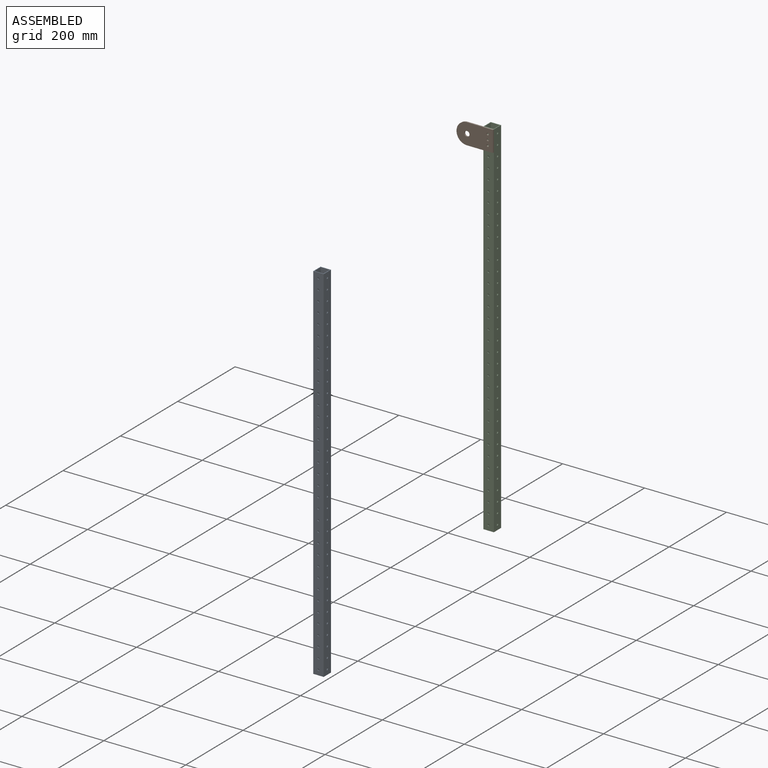
[diagram: assembled view]
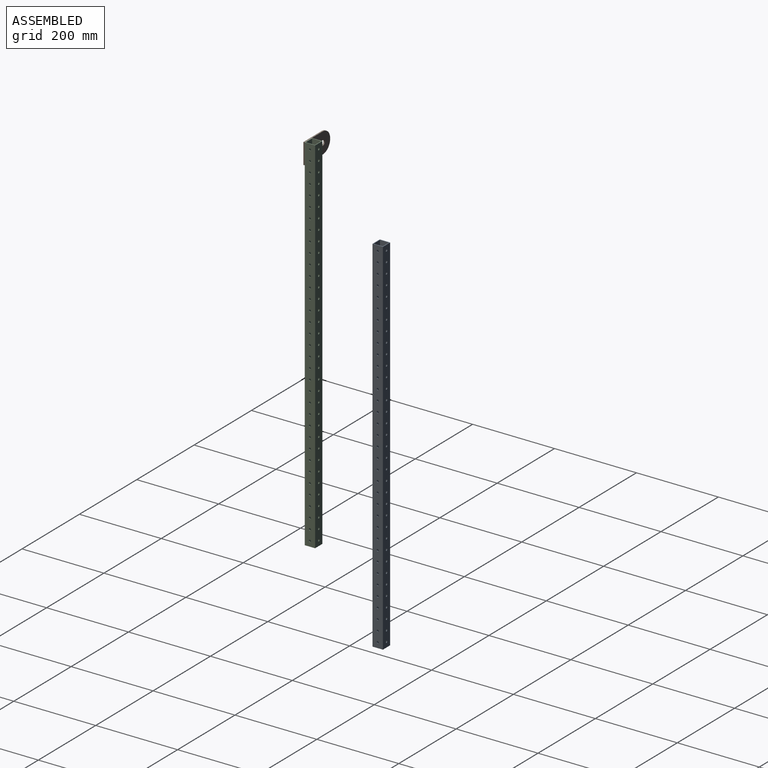
[diagram: assembled view, second angle]
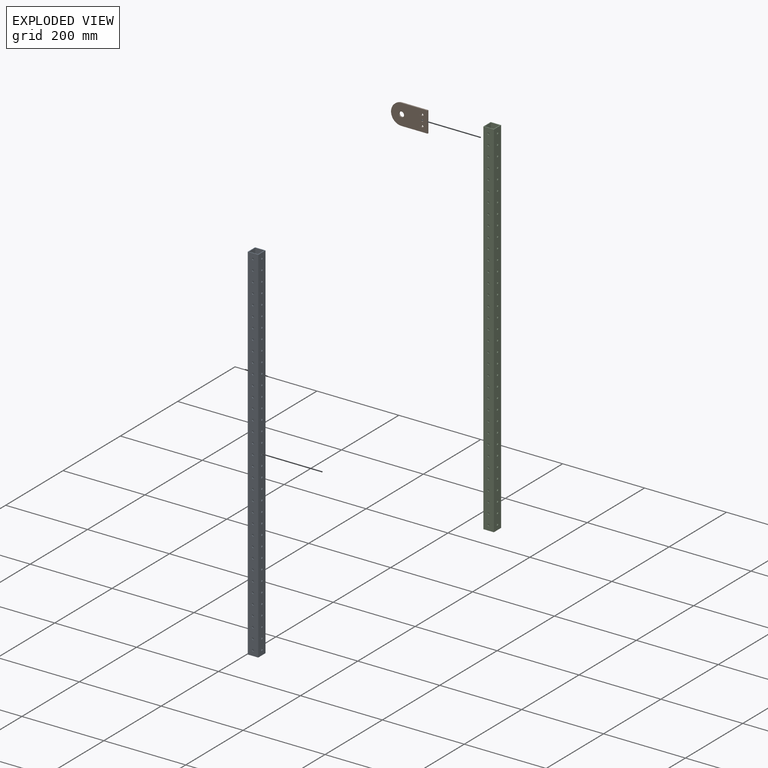
[diagram: exploded view]
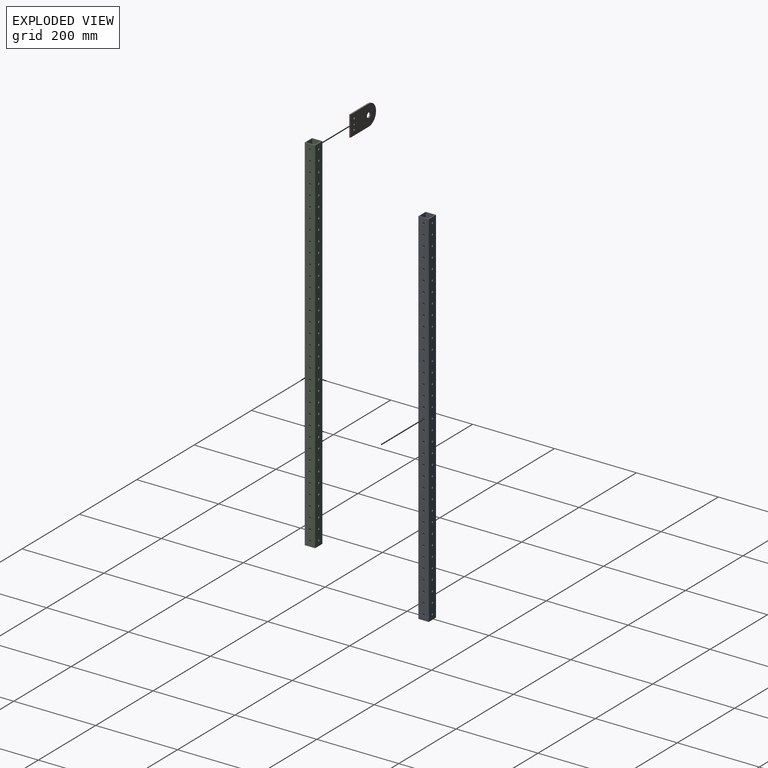
[diagram: exploded view, second angle]
ASSEMBLY  parts=3 mates=3
PART A: 150 faces, bbox 25.4x25.4x889 mm
  f0: plane 889x25.4mm, normal (1,0,0), area 21864.1mm2, adj f1,f3,f4,f5,f81,f83,f85,f87
  f1: plane 889x25.4mm, normal (0,1,0), area 21864.1mm2, adj f0,f2,f4,f5,f11,f13,f15,f17
  f2: plane 889x25.4mm, normal (-1,0,0), area 21864.1mm2, adj f1,f3,f4,f5,f80,f82,f84,f86
  f3: plane 889x25.4mm, normal (0,-1,0), area 21864.1mm2, adj f0,f2,f4,f5,f10,f12,f14,f16
  f4: plane 25.4x25.4mm, normal (0,0,1), area 151.2mm2, adj f0,f1,f2,f3,f6,f7,f8,f9
  f5: plane 25.4x25.4mm, normal (0,0,-1), area 151.2mm2, adj f0,f1,f2,f3,f6,f7,f8,f9
  f6: plane 889x22.23mm, normal (-1,0,0), area 19041.5mm2, adj f4,f5,f7,f9,f81,f83,f85,f87
  f7: plane 889x22.23mm, normal (0,-1,0), area 19041.5mm2, adj f4,f5,f6,f8,f11,f13,f15,f17
  f8: plane 889x22.23mm, normal (1,0,0), area 19041.5mm2, adj f4,f5,f7,f9,f80,f82,f84,f86
  f9: plane 889x22.23mm, normal (0,1,0), area 19041.5mm2, adj f4,f5,f6,f8,f10,f12,f14,f16
  f10: cylinder r=2.55mm len=5.11mm, axis (0,1,0), area 25.5mm2, adj f3,f9
  f11: cylinder r=2.55mm len=5.11mm, axis (0,1,0), area 25.5mm2, adj f1,f7
  f12: cylinder r=2.55mm len=5.11mm, axis (0,1,0), area 25.5mm2, adj f3,f9
  f13: cylinder r=2.55mm len=5.11mm, axis (0,1,0), area 25.5mm2, adj f1,f7
  f14: cylinder r=2.55mm len=5.11mm, axis (0,1,0), area 25.5mm2, adj f3,f9
  f15: cylinder r=2.55mm len=5.11mm, axis (0,1,0), area 25.5mm2, adj f1,f7
  f16: cylinder r=2.55mm len=5.11mm, axis (0,1,0), area 25.5mm2, adj f3,f9
  f17: cylinder r=2.55mm len=5.11mm, axis (0,1,0), area 25.5mm2, adj f1,f7
  f18: cylinder r=2.55mm len=5.11mm, axis (0,1,0), area 25.5mm2, adj f3,f9
  f19: cylinder r=2.55mm len=5.11mm, axis (0,1,0), area 25.5mm2, adj f1,f7
  f20: cylinder r=2.55mm len=5.11mm, axis (0,1,0), area 25.5mm2, adj f3,f9
  f21: cylinder r=2.55mm len=5.11mm, axis (0,1,0), area 25.5mm2, adj f1,f7
  f22: cylinder r=2.55mm len=5.11mm, axis (0,1,0), area 25.5mm2, adj f3,f9
  f23: cylinder r=2.55mm len=5.11mm, axis (0,1,0), area 25.5mm2, adj f1,f7
  f24: cylinder r=2.55mm len=5.11mm, axis (0,1,0), area 25.5mm2, adj f3,f9
  f25: cylinder r=2.55mm len=5.11mm, axis (0,1,0), area 25.5mm2, adj f1,f7
  f26: cylinder r=2.55mm len=5.11mm, axis (0,1,0), area 25.5mm2, adj f3,f9
  f27: cylinder r=2.55mm len=5.11mm, axis (0,1,0), area 25.5mm2, adj f1,f7
  f28: cylinder r=2.55mm len=5.11mm, axis (0,1,0), area 25.5mm2, adj f3,f9
  f29: cylinder r=2.55mm len=5.11mm, axis (0,1,0), area 25.5mm2, adj f1,f7
  f30: cylinder r=2.55mm len=5.11mm, axis (0,1,0), area 25.5mm2, adj f3,f9
  f31: cylinder r=2.55mm len=5.11mm, axis (0,1,0), area 25.5mm2, adj f1,f7
  f32: cylinder r=2.55mm len=5.11mm, axis (0,1,0), area 25.5mm2, adj f3,f9
  f33: cylinder r=2.55mm len=5.11mm, axis (0,1,0), area 25.5mm2, adj f1,f7
  f34: cylinder r=2.55mm len=5.11mm, axis (0,1,0), area 25.5mm2, adj f3,f9
  f35: cylinder r=2.55mm len=5.11mm, axis (0,1,0), area 25.5mm2, adj f1,f7
  f36: cylinder r=2.55mm len=5.11mm, axis (0,1,0), area 25.5mm2, adj f3,f9
  f37: cylinder r=2.55mm len=5.11mm, axis (0,1,0), area 25.5mm2, adj f1,f7
  f38: cylinder r=2.55mm len=5.11mm, axis (0,1,0), area 25.5mm2, adj f3,f9
  f39: cylinder r=2.55mm len=5.11mm, axis (0,1,0), area 25.5mm2, adj f1,f7
  f40: cylinder r=2.55mm len=5.11mm, axis (0,1,0), area 25.5mm2, adj f3,f9
  f41: cylinder r=2.55mm len=5.11mm, axis (0,1,0), area 25.5mm2, adj f1,f7
  f42: cylinder r=2.55mm len=5.11mm, axis (0,1,0), area 25.5mm2, adj f3,f9
  f43: cylinder r=2.55mm len=5.11mm, axis (0,1,0), area 25.5mm2, adj f1,f7
  f44: cylinder r=2.55mm len=5.11mm, axis (0,1,0), area 25.5mm2, adj f3,f9
  f45: cylinder r=2.55mm len=5.11mm, axis (0,1,0), area 25.5mm2, adj f1,f7
  f46: cylinder r=2.55mm len=5.11mm, axis (0,1,0), area 25.5mm2, adj f3,f9
  f47: cylinder r=2.55mm len=5.11mm, axis (0,1,0), area 25.5mm2, adj f1,f7
  f48: cylinder r=2.55mm len=5.11mm, axis (0,1,0), area 25.5mm2, adj f3,f9
  f49: cylinder r=2.55mm len=5.11mm, axis (0,1,0), area 25.5mm2, adj f1,f7
  f50: cylinder r=2.55mm len=5.11mm, axis (0,1,0), area 25.5mm2, adj f3,f9
  f51: cylinder r=2.55mm len=5.11mm, axis (0,1,0), area 25.5mm2, adj f1,f7
  f52: cylinder r=2.55mm len=5.11mm, axis (0,1,0), area 25.5mm2, adj f3,f9
  f53: cylinder r=2.55mm len=5.11mm, axis (0,1,0), area 25.5mm2, adj f1,f7
  f54: cylinder r=2.55mm len=5.11mm, axis (0,1,0), area 25.5mm2, adj f3,f9
  f55: cylinder r=2.55mm len=5.11mm, axis (0,1,0), area 25.5mm2, adj f1,f7
  f56: cylinder r=2.55mm len=5.11mm, axis (0,1,0), area 25.5mm2, adj f3,f9
  f57: cylinder r=2.55mm len=5.11mm, axis (0,1,0), area 25.5mm2, adj f1,f7
  f58: cylinder r=2.55mm len=5.11mm, axis (0,1,0), area 25.5mm2, adj f3,f9
  f59: cylinder r=2.55mm len=5.11mm, axis (0,1,0), area 25.5mm2, adj f1,f7
  f60: cylinder r=2.55mm len=5.11mm, axis (0,1,0), area 25.5mm2, adj f3,f9
  f61: cylinder r=2.55mm len=5.11mm, axis (0,1,0), area 25.5mm2, adj f1,f7
  f62: cylinder r=2.55mm len=5.11mm, axis (0,1,0), area 25.5mm2, adj f3,f9
  f63: cylinder r=2.55mm len=5.11mm, axis (0,1,0), area 25.5mm2, adj f1,f7
  f64: cylinder r=2.55mm len=5.11mm, axis (0,1,0), area 25.5mm2, adj f3,f9
  f65: cylinder r=2.55mm len=5.11mm, axis (0,1,0), area 25.5mm2, adj f1,f7
  f66: cylinder r=2.55mm len=5.11mm, axis (0,1,0), area 25.5mm2, adj f3,f9
  f67: cylinder r=2.55mm len=5.11mm, axis (0,1,0), area 25.5mm2, adj f1,f7
  f68: cylinder r=2.55mm len=5.11mm, axis (0,1,0), area 25.5mm2, adj f3,f9
  f69: cylinder r=2.55mm len=5.11mm, axis (0,1,0), area 25.5mm2, adj f1,f7
  f70: cylinder r=2.55mm len=5.11mm, axis (0,1,0), area 25.5mm2, adj f3,f9
  f71: cylinder r=2.55mm len=5.11mm, axis (0,1,0), area 25.5mm2, adj f1,f7
  f72: cylinder r=2.55mm len=5.11mm, axis (0,1,0), area 25.5mm2, adj f3,f9
  f73: cylinder r=2.55mm len=5.11mm, axis (0,1,0), area 25.5mm2, adj f1,f7
  f74: cylinder r=2.55mm len=5.11mm, axis (0,1,0), area 25.5mm2, adj f3,f9
  f75: cylinder r=2.55mm len=5.11mm, axis (0,1,0), area 25.5mm2, adj f1,f7
  f76: cylinder r=2.55mm len=5.11mm, axis (0,1,0), area 25.5mm2, adj f3,f9
  f77: cylinder r=2.55mm len=5.11mm, axis (0,1,0), area 25.5mm2, adj f1,f7
  f78: cylinder r=2.55mm len=5.11mm, axis (0,1,0), area 25.5mm2, adj f3,f9
  f79: cylinder r=2.55mm len=5.11mm, axis (0,1,0), area 25.5mm2, adj f1,f7
  f80: cylinder r=2.55mm len=5.11mm, axis (1,0,0), area 25.5mm2, adj f2,f8
  f81: cylinder r=2.55mm len=5.11mm, axis (1,0,0), area 25.5mm2, adj f0,f6
  f82: cylinder r=2.55mm len=5.11mm, axis (1,0,0), area 25.5mm2, adj f2,f8
  f83: cylinder r=2.55mm len=5.11mm, axis (1,0,0), area 25.5mm2, adj f0,f6
  f84: cylinder r=2.55mm len=5.11mm, axis (1,0,0), area 25.5mm2, adj f2,f8
  f85: cylinder r=2.55mm len=5.11mm, axis (1,0,0), area 25.5mm2, adj f0,f6
  f86: cylinder r=2.55mm len=5.11mm, axis (1,0,0), area 25.5mm2, adj f2,f8
  f87: cylinder r=2.55mm len=5.11mm, axis (1,0,0), area 25.5mm2, adj f0,f6
  f88: cylinder r=2.55mm len=5.11mm, axis (1,0,0), area 25.5mm2, adj f2,f8
  f89: cylinder r=2.55mm len=5.11mm, axis (1,0,0), area 25.5mm2, adj f0,f6
  f90: cylinder r=2.55mm len=5.11mm, axis (1,0,0), area 25.5mm2, adj f2,f8
  f91: cylinder r=2.55mm len=5.11mm, axis (1,0,0), area 25.5mm2, adj f0,f6
  f92: cylinder r=2.55mm len=5.11mm, axis (1,0,0), area 25.5mm2, adj f2,f8
  f93: cylinder r=2.55mm len=5.11mm, axis (1,0,0), area 25.5mm2, adj f0,f6
  f94: cylinder r=2.55mm len=5.11mm, axis (1,0,0), area 25.5mm2, adj f2,f8
  f95: cylinder r=2.55mm len=5.11mm, axis (1,0,0), area 25.5mm2, adj f0,f6
  f96: cylinder r=2.55mm len=5.11mm, axis (1,0,0), area 25.5mm2, adj f2,f8
  f97: cylinder r=2.55mm len=5.11mm, axis (1,0,0), area 25.5mm2, adj f0,f6
  f98: cylinder r=2.55mm len=5.11mm, axis (1,0,0), area 25.5mm2, adj f2,f8
  f99: cylinder r=2.55mm len=5.11mm, axis (1,0,0), area 25.5mm2, adj f0,f6
  f100: cylinder r=2.55mm len=5.11mm, axis (1,0,0), area 25.5mm2, adj f2,f8
  f101: cylinder r=2.55mm len=5.11mm, axis (1,0,0), area 25.5mm2, adj f0,f6
  f102: cylinder r=2.55mm len=5.11mm, axis (1,0,0), area 25.5mm2, adj f2,f8
  f103: cylinder r=2.55mm len=5.11mm, axis (1,0,0), area 25.5mm2, adj f0,f6
  f104: cylinder r=2.55mm len=5.11mm, axis (1,0,0), area 25.5mm2, adj f2,f8
  f105: cylinder r=2.55mm len=5.11mm, axis (1,0,0), area 25.5mm2, adj f0,f6
  f106: cylinder r=2.55mm len=5.11mm, axis (1,0,0), area 25.5mm2, adj f2,f8
  f107: cylinder r=2.55mm len=5.11mm, axis (1,0,0), area 25.5mm2, adj f0,f6
  f108: cylinder r=2.55mm len=5.11mm, axis (1,0,0), area 25.5mm2, adj f2,f8
  f109: cylinder r=2.55mm len=5.11mm, axis (1,0,0), area 25.5mm2, adj f0,f6
  f110: cylinder r=2.55mm len=5.11mm, axis (1,0,0), area 25.5mm2, adj f2,f8
  f111: cylinder r=2.55mm len=5.11mm, axis (1,0,0), area 25.5mm2, adj f0,f6
  f112: cylinder r=2.55mm len=5.11mm, axis (1,0,0), area 25.5mm2, adj f2,f8
  f113: cylinder r=2.55mm len=5.11mm, axis (1,0,0), area 25.5mm2, adj f0,f6
  f114: cylinder r=2.55mm len=5.11mm, axis (1,0,0), area 25.5mm2, adj f2,f8
  f115: cylinder r=2.55mm len=5.11mm, axis (1,0,0), area 25.5mm2, adj f0,f6
  f116: cylinder r=2.55mm len=5.11mm, axis (1,0,0), area 25.5mm2, adj f2,f8
  f117: cylinder r=2.55mm len=5.11mm, axis (1,0,0), area 25.5mm2, adj f0,f6
  f118: cylinder r=2.55mm len=5.11mm, axis (1,0,0), area 25.5mm2, adj f2,f8
  f119: cylinder r=2.55mm len=5.11mm, axis (1,0,0), area 25.5mm2, adj f0,f6
  f120: cylinder r=2.55mm len=5.11mm, axis (1,0,0), area 25.5mm2, adj f2,f8
  f121: cylinder r=2.55mm len=5.11mm, axis (1,0,0), area 25.5mm2, adj f0,f6
  f122: cylinder r=2.55mm len=5.11mm, axis (1,0,0), area 25.5mm2, adj f2,f8
  f123: cylinder r=2.55mm len=5.11mm, axis (1,0,0), area 25.5mm2, adj f0,f6
  f124: cylinder r=2.55mm len=5.11mm, axis (1,0,0), area 25.5mm2, adj f2,f8
  f125: cylinder r=2.55mm len=5.11mm, axis (1,0,0), area 25.5mm2, adj f0,f6
  f126: cylinder r=2.55mm len=5.11mm, axis (1,0,0), area 25.5mm2, adj f2,f8
  f127: cylinder r=2.55mm len=5.11mm, axis (1,0,0), area 25.5mm2, adj f0,f6
  f128: cylinder r=2.55mm len=5.11mm, axis (1,0,0), area 25.5mm2, adj f2,f8
  f129: cylinder r=2.55mm len=5.11mm, axis (1,0,0), area 25.5mm2, adj f0,f6
  f130: cylinder r=2.55mm len=5.11mm, axis (1,0,0), area 25.5mm2, adj f2,f8
  f131: cylinder r=2.55mm len=5.11mm, axis (1,0,0), area 25.5mm2, adj f0,f6
  f132: cylinder r=2.55mm len=5.11mm, axis (1,0,0), area 25.5mm2, adj f2,f8
  f133: cylinder r=2.55mm len=5.11mm, axis (1,0,0), area 25.5mm2, adj f0,f6
  f134: cylinder r=2.55mm len=5.11mm, axis (1,0,0), area 25.5mm2, adj f2,f8
  f135: cylinder r=2.55mm len=5.11mm, axis (1,0,0), area 25.5mm2, adj f0,f6
  f136: cylinder r=2.55mm len=5.11mm, axis (1,0,0), area 25.5mm2, adj f2,f8
  f137: cylinder r=2.55mm len=5.11mm, axis (1,0,0), area 25.5mm2, adj f0,f6
  f138: cylinder r=2.55mm len=5.11mm, axis (1,0,0), area 25.5mm2, adj f2,f8
  f139: cylinder r=2.55mm len=5.11mm, axis (1,0,0), area 25.5mm2, adj f0,f6
  f140: cylinder r=2.55mm len=5.11mm, axis (1,0,0), area 25.5mm2, adj f2,f8
  f141: cylinder r=2.55mm len=5.11mm, axis (1,0,0), area 25.5mm2, adj f0,f6
  f142: cylinder r=2.55mm len=5.11mm, axis (1,0,0), area 25.5mm2, adj f2,f8
  f143: cylinder r=2.55mm len=5.11mm, axis (1,0,0), area 25.5mm2, adj f0,f6
  f144: cylinder r=2.55mm len=5.11mm, axis (1,0,0), area 25.5mm2, adj f2,f8
  f145: cylinder r=2.55mm len=5.11mm, axis (1,0,0), area 25.5mm2, adj f0,f6
  f146: cylinder r=2.55mm len=5.11mm, axis (1,0,0), area 25.5mm2, adj f2,f8
  f147: cylinder r=2.55mm len=5.11mm, axis (1,0,0), area 25.5mm2, adj f0,f6
  f148: cylinder r=2.55mm len=5.11mm, axis (1,0,0), area 25.5mm2, adj f2,f8
  f149: cylinder r=2.55mm len=5.11mm, axis (1,0,0), area 25.5mm2, adj f0,f6
PART B: 10 faces, bbox 50.8x3.2x88.9 mm
  f0: plane 50.8x3.18mm, normal (0,0,-1), area 161.3mm2, adj f1,f7,f8,f9
  f1: plane 63.5x3.18mm, normal (1,0,0), area 201.6mm2, adj f0,f2,f8,f9
  f2: cylinder r=25.4mm len=50.8mm, axis (0,1,0), area 253.4mm2, adj f1,f7,f8,f9
  f3: cylinder r=6.35mm len=12.7mm, axis (0,1,0), area 126.7mm2, adj f8,f9
  f4: cylinder r=2.55mm len=5.11mm, axis (0,1,0), area 50.9mm2, adj f8,f9
  f5: cylinder r=2.55mm len=5.11mm, axis (0,1,0), area 50.9mm2, adj f8,f9
  f6: cylinder r=2.55mm len=5.11mm, axis (0,1,0), area 50.9mm2, adj f8,f9
  f7: plane 63.5x3.18mm, normal (-1,0,0), area 201.6mm2, adj f0,f2,f8,f9
  f8: plane 88.9x50.8mm, normal (0,-1,0), area 4051.1mm2, adj f0,f1,f2,f3,f4,f5,f6,f7
  f9: plane 88.9x50.8mm, normal (0,1,0), area 4051.1mm2, adj f0,f1,f2,f3,f4,f5,f6,f7
PART C: same geometry as A
PLACE A t=(-600.81,76.85,191.09)mm
PLACE B rot(axis=(0,-1,0),90deg) t=(-295.11,148.28,1437.19)mm
PLACE C rot(axis=(0,-1,0),0deg) t=(-244.31,160.98,573.59)mm
MATE planar C.f14 <-> B.f9  axis (0,-1,0) through (-244.31,148.28,1399.09)mm
MATE cylindrical B.f4 <-> C.f12  axis (0,-1,0) through (-244.31,145.11,1424.49)mm
MATE cylindrical B.f6 <-> C.f10  axis (0,-1,0) through (-244.31,145.11,1449.89)mm
